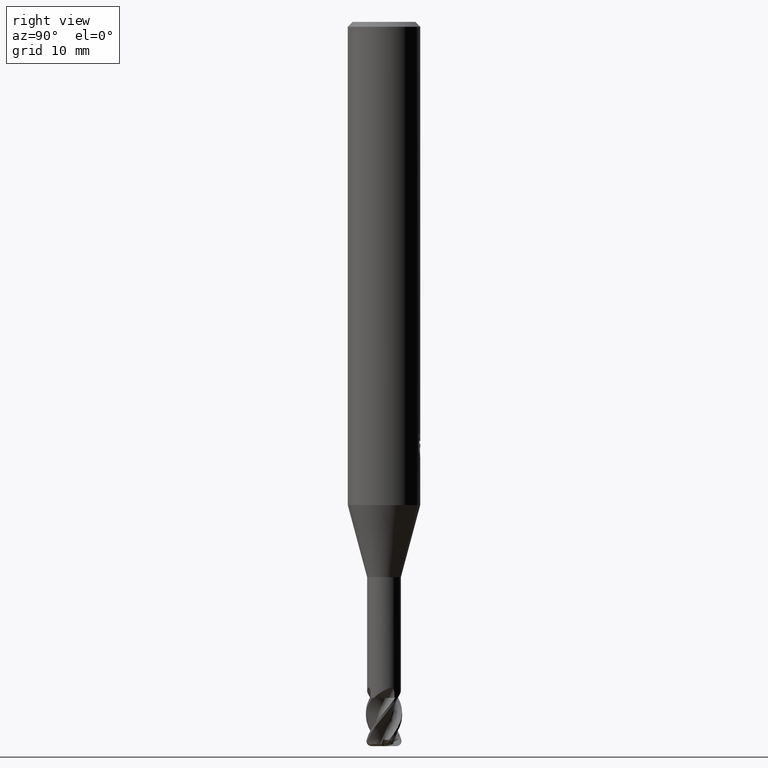
[diagram: clean part render]
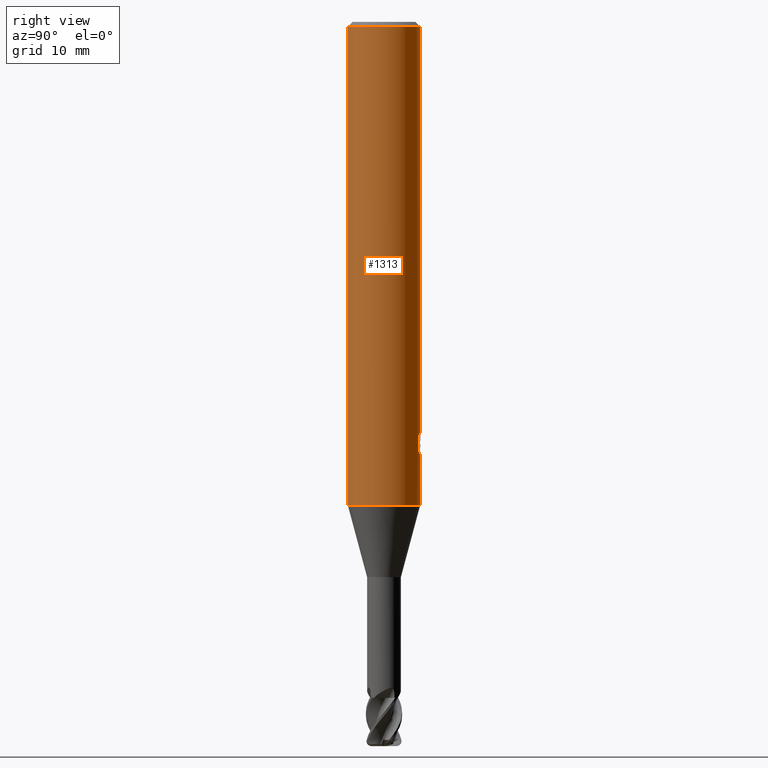
[diagram: same view with one face highlighted and labeled with its STEP entity id]
A machine part, right view. The second image highlights one B-rep face of the part: STEP entity #1313.
In plain terms, the highlighted cylindrical surface (edge-blend (fillet) strip) has radius 3 mm, axis along (-0, -0, 1).
Its self-contained STEP definition (entity closure, byte-faithful):
#551=VERTEX_POINT('',#1537);
#579=EDGE_CURVE('',#689,#1203,#1568,.T.);
#661=EDGE_CURVE('',#1203,#551,#1653,.T.);
#689=VERTEX_POINT('',#1683);
#701=VERTEX_POINT('',#1696);
#737=EDGE_CURVE('',#1413,#701,#1734,.T.);
#739=VERTEX_POINT('',#1736);
#823=EDGE_CURVE('',#551,#1317,#1824,.T.);
#857=EDGE_CURVE('',#1073,#921,#1861,.T.);
#887=EDGE_CURVE('',#1443,#1327,#1893,.T.);
#921=VERTEX_POINT('',#1930);
#943=EDGE_CURVE('',#701,#739,#1953,.T.);
#953=EDGE_CURVE('',#1413,#1269,#1963,.T.);
#977=EDGE_CURVE('',#1355,#1119,#1990,.T.);
#1043=EDGE_CURVE('',#1317,#1443,#2065,.T.);
#1071=EDGE_CURVE('',#1119,#1321,#2097,.T.);
#1073=VERTEX_POINT('',#2099);
#1119=VERTEX_POINT('',#2149);
#1141=EDGE_CURVE('',#739,#1269,#2174,.T.);
#1203=VERTEX_POINT('',#2245);
#1251=EDGE_CURVE('',#921,#689,#2297,.T.);
#1269=VERTEX_POINT('',#2317);
#1313=ADVANCED_FACE('',(#2366,#2367),#2368,.T.);
#1317=VERTEX_POINT('',#2372);
#1321=VERTEX_POINT('',#2376);
#1327=VERTEX_POINT('',#2382);
#1355=VERTEX_POINT('',#2412);
#1407=EDGE_CURVE('',#1327,#1355,#2471,.T.);
#1413=VERTEX_POINT('',#2478);
#1441=EDGE_CURVE('',#1321,#1073,#2507,.T.);
#1443=VERTEX_POINT('',#2509);
#1537=CARTESIAN_POINT('',(0.582364149245686,2.94293255064967,-34.9090141090597));
#1568=B_SPLINE_CURVE_WITH_KNOTS('',3,(#2736,#2737,#2738,#2739,#2740,#2741,#2742,#2743,#2744,#2745),.UNSPECIFIED.,.F.,.F.,(4,2,2,2,4),(3.71798730591323,4.13127027719931,4.54460961578536,4.9579489543714,5.37052319276389),.UNSPECIFIED.);
#1653=ELLIPSE('',#2984,9.14398372010932,3.0);
#1683=CARTESIAN_POINT('',(0.0173204359069983,2.99995,-36.0493099672144));
#1696=CARTESIAN_POINT('',(-3.67381906146713E-016,3.0,-40.029));
#1734=LINE('',#3491,#3492);
#1736=CARTESIAN_POINT('',(0.0,-3.0,-40.029));
#1824=LINE('',#3739,#3740);
#1861=ELLIPSE('',#3861,3.34478529612858,3.0);
#1893=LINE('',#3917,#3918);
#1930=CARTESIAN_POINT('',(0.017320435906985,2.99995,-35.1624691290817));
#1953=CIRCLE('',#4128,3.0);
#1963=CIRCLE('',#4194,3.0);
#1990=B_SPLINE_CURVE_WITH_KNOTS('',3,(#4248,#4249,#4250,#4251,#4252,#4253,#4254,#4255,#4256,#4257,#4258,#4259,#4260,#4261,#4262,#4263,#4264,#4265,#4266,#4267,#4268,#4269,#4270,#4271,#4272,#4273,#4274),.UNSPECIFIED.,.F.,.F.,(4,2,3,2,2,2,2,2,2,2,2,2,4),(-0.361797878080097,-0.180898939040048,0.0,0.180898939040045,0.36179787808009,0.54316499674529,0.724532115410489,0.905110773244761,1.08568943107903,1.26650066090355,1.44731189072806,1.62812312055258,1.80893435037709),.UNSPECIFIED.);
#2065=B_SPLINE_CURVE_WITH_KNOTS('',3,(#4924,#4925,#4926,#4927,#4928,#4929),.UNSPECIFIED.,.F.,.F.,(4,2,4),(5.37052262242642,5.78309682294637,6.19625240627158),.UNSPECIFIED.);
#2097=LINE('',#5167,#5168);
#2099=CARTESIAN_POINT('',(0.382078323112377,2.97556988743461,-34.9826374206519));
#2149=CARTESIAN_POINT('',(0.0173204359069655,2.99995,-34.7147978605752));
#2174=LINE('',#5688,#5689);
#2245=CARTESIAN_POINT('',(0.193398861644812,2.99375965640438,-36.028955271205));
#2297=LINE('',#6336,#6337);
#2317=CARTESIAN_POINT('',(3.67381906146713E-016,-3.0,-0.399999999999999));
#2366=FACE_OUTER_BOUND('',#6889,.T.);
#2367=FACE_BOUND('',#6890,.T.);
#2368=CYLINDRICAL_SURFACE('',#6891,3.0);
#2372=CARTESIAN_POINT('',(0.582364149245685,2.94293255064967,-35.8682261365542));
#2376=CARTESIAN_POINT('',(0.017320435906989,2.99995,-35.0311258377872));
#2382=CARTESIAN_POINT('',(0.891458520360562,2.86448978117859,-34.3724599021333));
#2412=CARTESIAN_POINT('',(0.532945602569763,2.95228199613478,-34.0291001845789));
#2471=B_SPLINE_CURVE_WITH_KNOTS('',3,(#7537,#7538,#7539,#7540,#7541,#7542),.UNSPECIFIED.,.F.,.F.,(4,2,4),(0.413155597726238,0.826311195452475,1.23888540984235),.UNSPECIFIED.);
#2478=CARTESIAN_POINT('',(0.0,3.0,-0.399999999999999));
#2507=B_SPLINE_CURVE_WITH_KNOTS('',3,(#7625,#7626,#7627,#7628,#7629,#7630,#7631,#7632,#7633,#7634,#7635,#7636,#7637,#7638),.UNSPECIFIED.,.F.,.F.,(4,2,2,2,2,2,4),(2.091097645352,2.38959558480883,2.68809352426566,2.9865914637225,3.28432857408576,3.58206568444903,3.88185771191667),.UNSPECIFIED.);
#2509=CARTESIAN_POINT('',(0.891458520360562,2.86448978117859,-35.5558516898096));
#2736=CARTESIAN_POINT('',(-1.02131077257619,2.8208020678204,-35.3813603909889));
#2737=CARTESIAN_POINT('',(-0.965748326062893,2.84091920915678,-35.5148586563829));
#2738=CARTESIAN_POINT('',(-0.882474008253194,2.86898278727422,-35.6360393018291));
#2739=CARTESIAN_POINT('',(-0.691181971660376,2.92097462682348,-35.8274209134462));
#2740=CARTESIAN_POINT('',(-0.569939118101215,2.94845792845378,-35.9108242986056));
#2741=CARTESIAN_POINT('',(-0.302738780934602,2.98773894197887,-36.0221051738375));
#2742=CARTESIAN_POINT('',(-0.156684840798735,2.99907204453492,-36.0499145449035));
#2743=CARTESIAN_POINT('',(0.118614216879022,3.00080717863586,-36.0499145449035));
#2744=CARTESIAN_POINT('',(0.264548965222023,2.99134988491468,-36.0221974310104));
#2745=CARTESIAN_POINT('',(0.398117192990064,2.97346644518577,-35.9666337934181));
#2984=AXIS2_PLACEMENT_3D('',#7964,#7965,#7966);
#3491=CARTESIAN_POINT('',(-3.67381906146713E-016,3.0,-18.2));
#3492=VECTOR('',#8023,1.0);
#3739=CARTESIAN_POINT('',(0.582364149245686,2.94293255064967,-35.388620122807));
#3740=VECTOR('',#8085,1.0);
#3861=AXIS2_PLACEMENT_3D('',#8132,#8133,#8134);
#3917=CARTESIAN_POINT('',(0.891458520360562,2.86448978117859,-34.9641557959714));
#3918=VECTOR('',#8155,1.0);
#4128=AXIS2_PLACEMENT_3D('',#8217,#8218,#8219);
#4194=AXIS2_PLACEMENT_3D('',#8221,#8222,#8223);
#4248=CARTESIAN_POINT('',(0.443451175650265,2.96704416125113,-33.9048764058061));
#4249=CARTESIAN_POINT('',(0.485825230520439,2.96071098134951,-33.9473072631593));
#4250=CARTESIAN_POINT('',(0.522628634598443,2.95423041401875,-34.0010565977036));
#4251=CARTESIAN_POINT('',(0.57151547907337,2.94516350896329,-34.1190093998545));
#4252=CARTESIAN_POINT('',(0.58359092842081,2.94268952291351,-34.1832247886017));
#4253=CARTESIAN_POINT('',(0.58359092842081,2.94268952291351,-34.2435244349484));
#4254=CARTESIAN_POINT('',(0.58359092842081,2.94268952291351,-34.3038240812951));
#4255=CARTESIAN_POINT('',(0.571515479073374,2.94516350896329,-34.3680394700423));
#4256=CARTESIAN_POINT('',(0.522628634598449,2.95423041401874,-34.4859922721932));
#4257=CARTESIAN_POINT('',(0.485825230520438,2.96071098134951,-34.5397416067375));
#4258=CARTESIAN_POINT('',(0.400967453640912,2.97339373188344,-34.6247131355921));
#4259=CARTESIAN_POINT('',(0.347160591378603,2.98043595390805,-34.6616186343397));
#4260=CARTESIAN_POINT('',(0.229067490754345,2.99183004798448,-34.7106491335629));
#4261=CARTESIAN_POINT('',(0.164768311964613,2.99608182394725,-34.7227661750437));
#4262=CARTESIAN_POINT('',(0.0441927259273236,3.00027835150232,-34.7227661750437));
#4263=CARTESIAN_POINT('',(-0.019984914707439,3.00051422459916,-34.7107432311485));
#4264=CARTESIAN_POINT('',(-0.138011899975601,2.99740516520178,-34.6618705536194));
#4265=CARTESIAN_POINT('',(-0.191865153226538,2.99416206152009,-34.6250238345305));
#4266=CARTESIAN_POINT('',(-0.276951356845972,2.9874941541864,-34.5400104084073));
#4267=CARTESIAN_POINT('',(-0.31385751762486,2.98363884435361,-34.4861404765947));
#4268=CARTESIAN_POINT('',(-0.362829872721118,2.97808021777493,-34.36803592618));
#4269=CARTESIAN_POINT('',(-0.374892551769671,2.97648376018208,-34.3037948448899));
#4270=CARTESIAN_POINT('',(-0.374892551769671,2.97648376018208,-34.1832540250069));
#4271=CARTESIAN_POINT('',(-0.362829872721118,2.97808021777493,-34.1190129437168));
#4272=CARTESIAN_POINT('',(-0.31385751762486,2.98363884435361,-34.0009083933022));
#4273=CARTESIAN_POINT('',(-0.276951356845972,2.9874941541864,-33.9470384614896));
#4274=CARTESIAN_POINT('',(-0.234380876478644,2.99083025341478,-33.9045043932883));
#4924=CARTESIAN_POINT('',(0.398117010340557,2.97346646964069,-35.9666335040356));
#4925=CARTESIAN_POINT('',(0.531685226880308,2.95558303976684,-35.9110698713996));
#4926=CARTESIAN_POINT('',(0.652975783373712,2.92974185605895,-35.8277230899086));
#4927=CARTESIAN_POINT('',(0.844490785097963,2.88038670497133,-35.6362944450911));
#4928=CARTESIAN_POINT('',(0.927866849687466,2.85351135080826,-35.5149939218539));
#4929=CARTESIAN_POINT('',(0.983470326877133,2.83421701994611,-35.3814192995311));
#5167=CARTESIAN_POINT('',(0.017320435906985,2.99995,-35.0395073647412));
#5168=VECTOR('',#8382,1.0);
#5688=CARTESIAN_POINT('',(3.67381906146713E-016,-3.0,-18.2));
#5689=VECTOR('',#8476,1.0);
#6336=CARTESIAN_POINT('',(0.017320435906985,2.99995,-35.0395073647412));
#6337=VECTOR('',#8618,1.0);
#6889=EDGE_LOOP('',(#8699,#8700,#8701,#8702));
#6890=EDGE_LOOP('',(#8703,#8704,#8705,#8706,#8707,#8708,#8709,#8710,#8711,#8712,#8713));
#6891=AXIS2_PLACEMENT_3D('',#8714,#8715,#8716);
#7537=CARTESIAN_POINT('',(0.983470332191283,2.8342170181021,-34.5468923016557));
#7538=CARTESIAN_POINT('',(0.927866853050187,2.8535113497582,-34.413317674708));
#7539=CARTESIAN_POINT('',(0.844490785540526,2.88038670496079,-34.2920171472775));
#7540=CARTESIAN_POINT('',(0.65297577716901,2.92974185755459,-34.1005884959489));
#7541=CARTESIAN_POINT('',(0.531685216531229,2.95558304183374,-34.0172417116512));
#7542=CARTESIAN_POINT('',(0.398116995441561,2.97346647163552,-33.9616780771523));
#7625=CARTESIAN_POINT('',(-0.629727328037683,2.93316271153213,-33.9440913557644));
#7626=CARTESIAN_POINT('',(-0.670089755997728,2.92449721450026,-34.0412639601135));
#7627=CARTESIAN_POINT('',(-0.690061178540054,2.91955742705498,-34.1471316354559));
#7628=CARTESIAN_POINT('',(-0.690061178540054,2.91955742705498,-34.3461302617605));
#7629=CARTESIAN_POINT('',(-0.670089755997728,2.92449721450026,-34.4519979371029));
#7630=CARTESIAN_POINT('',(-0.589364900077664,2.94182820856402,-34.6463431458012));
#7631=CARTESIAN_POINT('',(-0.528629969212499,2.95390696563364,-34.7348560999866));
#7632=CARTESIAN_POINT('',(-0.388825924618277,2.97553438372319,-34.8744507471901));
#7633=CARTESIAN_POINT('',(-0.300374998568301,2.98650953771095,-34.9350152917628));
#7634=CARTESIAN_POINT('',(-0.106252469502454,2.99969577970094,-35.0154637231012));
#7635=CARTESIAN_POINT('',(-0.000555188223129111,3.0016411180253,-35.0353289843056));
#7636=CARTESIAN_POINT('',(0.198513504569518,2.99509240733468,-35.0353289843056));
#7637=CARTESIAN_POINT('',(0.304528894401634,2.98611319488251,-35.015217470731));
#7638=CARTESIAN_POINT('',(0.401676121348868,2.97298777218106,-34.9747873850085));
#7964=CARTESIAN_POINT('',(0.0,0.0,-36.5858053366801));
#7965=DIRECTION('',(0.944648353914092,0.0,-0.328084573619969));
#7966=DIRECTION('',(0.328084573619969,-0.0,0.944648353914092));
#8023=DIRECTION('',(0.0,0.0,-1.0));
#8085=DIRECTION('',(0.0,0.0,-1.0));
#8132=CARTESIAN_POINT('',(0.0,0.0,-35.1710083922181));
#8133=DIRECTION('',(-0.442195774284071,0.0,0.896918556617774));
#8134=DIRECTION('',(0.896918556617774,-0.0,0.442195774284071));
#8155=DIRECTION('',(-0.0,-0.0,1.0));
#8217=CARTESIAN_POINT('',(0.0,0.0,-40.029));
#8218=DIRECTION('',(0.0,0.0,-1.0));
#8219=DIRECTION('',(0.0,-1.0,0.0));
#8221=CARTESIAN_POINT('',(0.0,0.0,-0.399999999999999));
#8222=DIRECTION('',(0.0,0.0,-1.0));
#8223=DIRECTION('',(0.0,1.0,0.0));
#8382=DIRECTION('',(0.0,0.0,-1.0));
#8476=DIRECTION('',(-0.0,-0.0,1.0));
#8618=DIRECTION('',(0.0,0.0,-1.0));
#8699=ORIENTED_EDGE('',*,*,#737,.F.);
#8700=ORIENTED_EDGE('',*,*,#953,.T.);
#8701=ORIENTED_EDGE('',*,*,#1141,.F.);
#8702=ORIENTED_EDGE('',*,*,#943,.F.);
#8703=ORIENTED_EDGE('',*,*,#857,.T.);
#8704=ORIENTED_EDGE('',*,*,#1251,.T.);
#8705=ORIENTED_EDGE('',*,*,#579,.T.);
#8706=ORIENTED_EDGE('',*,*,#661,.T.);
#8707=ORIENTED_EDGE('',*,*,#823,.T.);
#8708=ORIENTED_EDGE('',*,*,#1043,.T.);
#8709=ORIENTED_EDGE('',*,*,#887,.T.);
#8710=ORIENTED_EDGE('',*,*,#1407,.T.);
#8711=ORIENTED_EDGE('',*,*,#977,.T.);
#8712=ORIENTED_EDGE('',*,*,#1071,.T.);
#8713=ORIENTED_EDGE('',*,*,#1441,.T.);
#8714=CARTESIAN_POINT('',(0.0,0.0,-18.2));
#8715=DIRECTION('',(-0.0,-0.0,1.0));
#8716=DIRECTION('',(0.0,1.0,0.0));